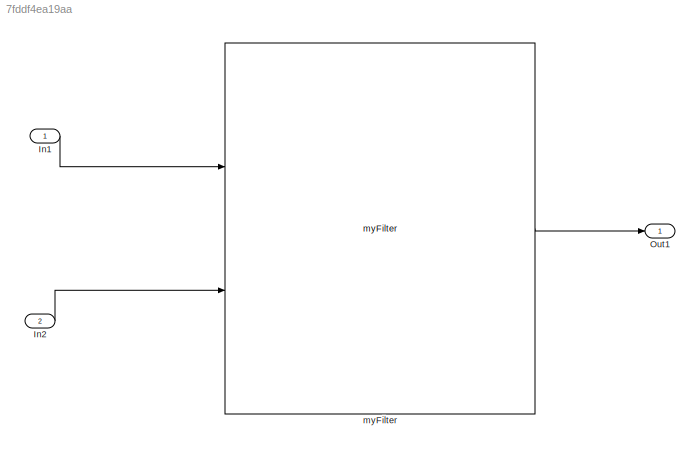
MODEL slx_7fddf4ea19aa
KIND model
CONFIG AbsTol = auto
CONFIG EnableMultiTasking = off
CONFIG FixedStep = auto
CONFIG MaxStep = auto
CONFIG MinStep = auto
CONFIG RelTol = 1e-3
CONFIG SampleTimeConstraint = Unconstrained
CONFIG SolverName = VariableStepAuto
CONFIG StartTime = 0.0
CONFIG StopTime = 10.0
BLOCK [Inport] In1
BLOCK [Inport] In2
  Port = 2
BLOCK [Outport] Out1
BLOCK [Reference] myFilter  REF=libex/myFilter  (lib defined in slx_abec5b733a5b)
  Ports = [2, 1]
  SourceBlock = libex/myFilter
  SourceProductName = FSC_Lib
  SourceType = SubSystem
LINE In1:1 -> myFilter:1
LINE In2:1 -> myFilter:2
LINE myFilter:1 -> Out1:1
